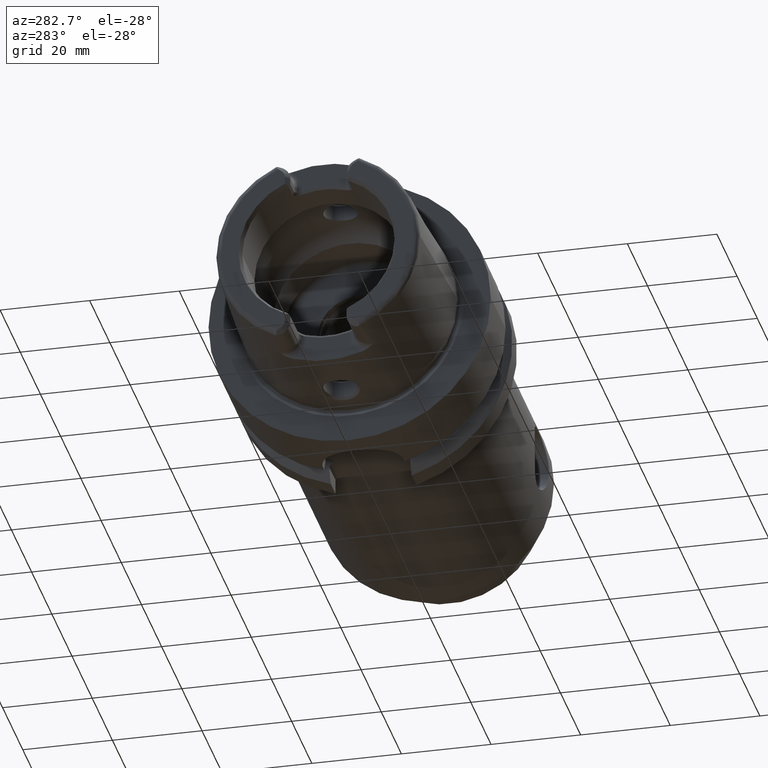
[diagram: clean part render]
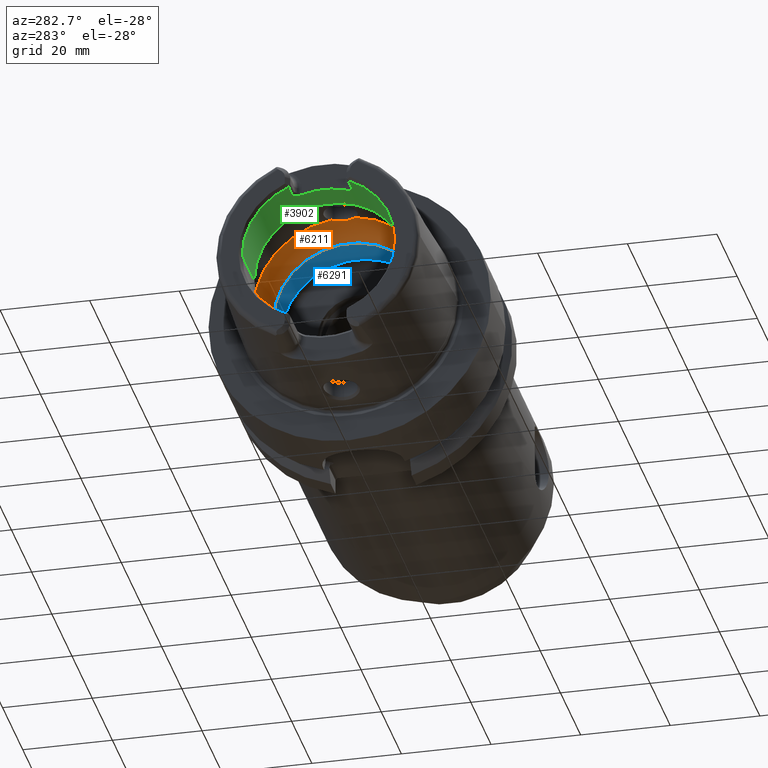
[diagram: same view with three faces highlighted in distinct colors, each labeled with its STEP entity id]
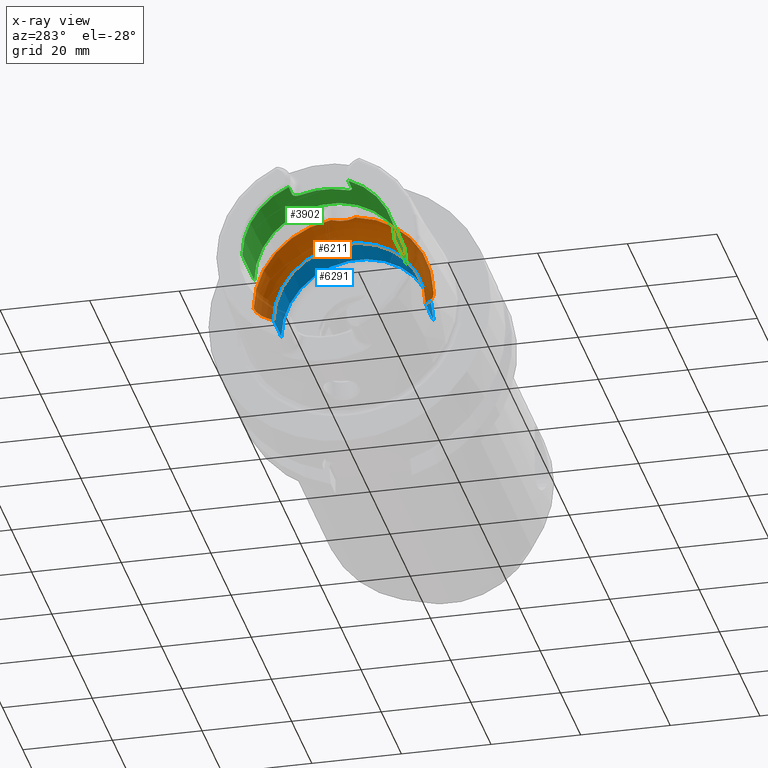
[diagram: x-ray of the same camera — body ghosted, the three highlighted faces saturated]
A machine part, auxiliary view with three faces highlighted in distinct colors.
The next image is the same camera in x-ray (body ghosted, the three faces saturated) — at least one of them is partly hidden behind the body in this view.
Their STEP definitions:

[orange] entity #6211 — the highlighted toroidal blend (fillet) surface has major radius 12 mm and minor (blend) radius 8 mm.
#2427=CARTESIAN_POINT('',(-5.25E0,0.E0,1.992470689575E1));
#2428=CARTESIAN_POINT('',(-5.25E0,1.634249880127E-1,1.992470689575E1));
#2429=CARTESIAN_POINT('',(-5.271317000323E0,4.905125142286E-1,
1.992366860007E1));
#2430=CARTESIAN_POINT('',(-5.367938073203E0,9.753406287590E-1,
1.991846757388E1));
#2431=CARTESIAN_POINT('',(-5.525913254439E0,1.440181253243E0,1.990841194030E1));
#2432=CARTESIAN_POINT('',(-5.745012466850E0,1.883704211740E0,1.989126222791E1));
#2433=CARTESIAN_POINT('',(-6.017092970824E0,2.289932260455E0,1.986481338490E1));
#2434=CARTESIAN_POINT('',(-6.231037578916E0,2.534045566496E0,1.983915065875E1));
#2435=CARTESIAN_POINT('',(-6.344997998398E0,2.648294615690E0,1.982388800484E1));
#2437=CARTESIAN_POINT('',(-6.344997998398E0,-2.648294615690E0,
1.982388800484E1));
#2438=CARTESIAN_POINT('',(-6.231045843136E0,-2.534053851646E0,
1.983914955193E1));
#2439=CARTESIAN_POINT('',(-6.017093742818E0,-2.289943440357E0,
1.986481395775E1));
#2440=CARTESIAN_POINT('',(-5.744901596897E0,-1.883527876206E0,
1.989127237006E1));
#2441=CARTESIAN_POINT('',(-5.525828432433E0,-1.439963272778E0,
1.990841763195E1));
#2442=CARTESIAN_POINT('',(-5.367908372542E0,-9.752317929729E-1,
1.991846926373E1));
#2443=CARTESIAN_POINT('',(-5.271289109403E0,-4.903031116233E-1,
1.992367002777E1));
#2444=CARTESIAN_POINT('',(-5.25E0,-1.633414179458E-1,1.992470689575E1));
#2445=CARTESIAN_POINT('',(-5.25E0,0.E0,1.992470689575E1));
#2447=CARTESIAN_POINT('',(-1.E-1,0.E0,0.E0));
#2448=DIRECTION('',(1.E0,0.E0,0.E0));
#2449=DIRECTION('',(0.E0,1.E0,0.E0));
#2450=AXIS2_PLACEMENT_3D('',#2447,#2448,#2449);
#2472=CARTESIAN_POINT('',(-6.344997998398E0,0.E0,0.E0));
#2473=DIRECTION('',(1.E0,0.E0,0.E0));
#2474=DIRECTION('',(0.E0,1.E0,0.E0));
#2475=AXIS2_PLACEMENT_3D('',#2472,#2473,#2474);
#2477=CARTESIAN_POINT('',(-6.344997998398E0,0.E0,0.E0));
#2478=DIRECTION('',(1.E0,0.E0,0.E0));
#2479=DIRECTION('',(0.E0,-1.324147307845E-1,9.911944002421E-1));
#2480=AXIS2_PLACEMENT_3D('',#2477,#2478,#2479);
#2570=CARTESIAN_POINT('',(-6.344997998398E0,1.2E1,0.E0));
#2571=DIRECTION('',(0.E0,0.E0,1.E0));
#2572=DIRECTION('',(7.806247497998E-1,6.25E-1,0.E0));
#2573=AXIS2_PLACEMENT_3D('',#2570,#2571,#2572);
#2580=CARTESIAN_POINT('',(-6.344997998398E0,-1.2E1,0.E0));
#2581=DIRECTION('',(0.E0,0.E0,-1.E0));
#2582=DIRECTION('',(7.806247497998E-1,-6.25E-1,0.E0));
#2583=AXIS2_PLACEMENT_3D('',#2580,#2581,#2582);
#2849=CARTESIAN_POINT('',(-1.E-1,1.7E1,0.E0));
#2850=VERTEX_POINT('',#2849);
#2851=CARTESIAN_POINT('',(-6.344997998398E0,2.E1,0.E0));
#2852=VERTEX_POINT('',#2851);
#2861=CARTESIAN_POINT('',(-1.E-1,-1.7E1,0.E0));
#2862=VERTEX_POINT('',#2861);
#2863=CARTESIAN_POINT('',(-6.344997998398E0,-2.E1,0.E0));
#2864=VERTEX_POINT('',#2863);
#3032=VERTEX_POINT('',#2427);
#3033=VERTEX_POINT('',#2435);
#3034=VERTEX_POINT('',#2437);
#6192=CARTESIAN_POINT('',(-6.344997998398E0,0.E0,0.E0));
#6193=DIRECTION('',(1.E0,0.E0,0.E0));
#6194=DIRECTION('',(0.E0,-1.E0,0.E0));
#6195=AXIS2_PLACEMENT_3D('',#6192,#6193,#6194);
#6196=TOROIDAL_SURFACE('',#6195,1.2E1,8.E0);
#6197=ORIENTED_EDGE('',*,*,#6169,.F.);
#6198=ORIENTED_EDGE('',*,*,#5935,.F.);
#6200=ORIENTED_EDGE('',*,*,#6199,.T.);
#6202=ORIENTED_EDGE('',*,*,#6201,.F.);
#6204=ORIENTED_EDGE('',*,*,#6203,.F.);
#6206=ORIENTED_EDGE('',*,*,#6205,.T.);
#6208=ORIENTED_EDGE('',*,*,#6207,.T.);
#6209=EDGE_LOOP('',(#6197,#6198,#6200,#6202,#6204,#6206,#6208));
#6210=FACE_OUTER_BOUND('',#6209,.F.);
#6211=ADVANCED_FACE('',(#6210),#6196,.F.);
#2436=B_SPLINE_CURVE_WITH_KNOTS('',3,(#2427,#2428,#2429,#2430,#2431,#2432,#2433,
#2434,#2435),.UNSPECIFIED.,.F.,.F.,(4,1,1,1,1,1,4),(0.E0,1.666666666667E-1,
3.333333333333E-1,5.E-1,6.666666666667E-1,8.333333333333E-1,1.E0),
.UNSPECIFIED.);
#2446=B_SPLINE_CURVE_WITH_KNOTS('',3,(#2437,#2438,#2439,#2440,#2441,#2442,#2443,
#2444,#2445),.UNSPECIFIED.,.F.,.F.,(4,1,1,1,1,1,4),(0.E0,1.666666666667E-1,
3.333333333333E-1,5.E-1,6.666666666667E-1,8.333333333333E-1,1.E0),
.UNSPECIFIED.);
#2451=CIRCLE('',#2450,1.7E1);
#2476=CIRCLE('',#2475,2.E1);
#2481=CIRCLE('',#2480,2.E1);
#2574=CIRCLE('',#2573,8.E0);
#2584=CIRCLE('',#2583,8.E0);
#5935=EDGE_CURVE('',#3034,#3032,#2446,.T.);
#6169=EDGE_CURVE('',#3032,#3033,#2436,.T.);
#6199=EDGE_CURVE('',#3034,#2864,#2481,.T.);
#6201=EDGE_CURVE('',#2862,#2864,#2584,.T.);
#6203=EDGE_CURVE('',#2850,#2862,#2451,.T.);
#6205=EDGE_CURVE('',#2850,#2852,#2574,.T.);
#6207=EDGE_CURVE('',#2852,#3033,#2476,.T.);

[blue] entity #6291 — the highlighted cylindrical surface (partial cylindrical patch) has radius 17 mm, axis along (1, 0, 0).
#2447=CARTESIAN_POINT('',(-1.E-1,0.E0,0.E0));
#2448=DIRECTION('',(1.E0,0.E0,0.E0));
#2449=DIRECTION('',(0.E0,1.E0,0.E0));
#2450=AXIS2_PLACEMENT_3D('',#2447,#2448,#2449);
#2595=DIRECTION('',(-1.E0,0.E0,0.E0));
#2596=VECTOR('',#2595,7.770843802411E0);
#2597=CARTESIAN_POINT('',(7.670843802411E0,1.7E1,0.E0));
#2598=LINE('',#2597,#2596);
#2604=DIRECTION('',(-1.E0,0.E0,0.E0));
#2605=VECTOR('',#2604,7.770843802411E0);
#2606=CARTESIAN_POINT('',(7.670843802411E0,-1.7E1,0.E0));
#2607=LINE('',#2606,#2605);
#2608=CARTESIAN_POINT('',(7.670843802411E0,0.E0,0.E0));
#2609=DIRECTION('',(1.E0,0.E0,0.E0));
#2610=DIRECTION('',(0.E0,1.E0,0.E0));
#2611=AXIS2_PLACEMENT_3D('',#2608,#2609,#2610);
#2842=CARTESIAN_POINT('',(7.670843802411E0,1.7E1,0.E0));
#2844=VERTEX_POINT('',#2842);
#2846=CARTESIAN_POINT('',(7.670843802411E0,-1.7E1,0.E0));
#2848=VERTEX_POINT('',#2846);
#2849=CARTESIAN_POINT('',(-1.E-1,1.7E1,0.E0));
#2850=VERTEX_POINT('',#2849);
#2861=CARTESIAN_POINT('',(-1.E-1,-1.7E1,0.E0));
#2862=VERTEX_POINT('',#2861);
#6279=CARTESIAN_POINT('',(-3.41E1,0.E0,0.E0));
#6280=DIRECTION('',(1.E0,0.E0,0.E0));
#6281=DIRECTION('',(0.E0,-1.E0,0.E0));
#6282=AXIS2_PLACEMENT_3D('',#6279,#6280,#6281);
#6283=CYLINDRICAL_SURFACE('',#6282,1.7E1);
#6284=ORIENTED_EDGE('',*,*,#6269,.T.);
#6285=ORIENTED_EDGE('',*,*,#6203,.T.);
#6286=ORIENTED_EDGE('',*,*,#6273,.F.);
#6288=ORIENTED_EDGE('',*,*,#6287,.F.);
#6289=EDGE_LOOP('',(#6284,#6285,#6286,#6288));
#6290=FACE_OUTER_BOUND('',#6289,.F.);
#6291=ADVANCED_FACE('',(#6290),#6283,.F.);
#2451=CIRCLE('',#2450,1.7E1);
#2612=CIRCLE('',#2611,1.7E1);
#6203=EDGE_CURVE('',#2850,#2862,#2451,.T.);
#6269=EDGE_CURVE('',#2844,#2850,#2598,.T.);
#6273=EDGE_CURVE('',#2848,#2862,#2607,.T.);
#6287=EDGE_CURVE('',#2844,#2848,#2612,.T.);

[green] entity #3902 — the highlighted cylindrical surface (partial cylindrical patch) has radius 17 mm, axis along (1, 0, 0).
#362=CARTESIAN_POINT('',(-3.1E1,0.E0,0.E0));
#363=DIRECTION('',(1.E0,0.E0,0.E0));
#364=DIRECTION('',(0.E0,1.E0,0.E0));
#365=AXIS2_PLACEMENT_3D('',#362,#363,#364);
#394=CARTESIAN_POINT('',(-3.1E1,0.E0,0.E0));
#395=DIRECTION('',(1.E0,0.E0,0.E0));
#396=DIRECTION('',(0.E0,-3.910839598454E-1,9.203550056102E-1));
#397=AXIS2_PLACEMENT_3D('',#394,#395,#396);
#559=DIRECTION('',(1.E0,0.E0,0.E0));
#560=VECTOR('',#559,3.5E0);
#561=CARTESIAN_POINT('',(-3.1E1,6.648427317371E0,1.564603509537E1));
#562=LINE('',#561,#560);
#563=CARTESIAN_POINT('',(-2.571132486541E1,4.77E0,1.631708000838E1));
#564=CARTESIAN_POINT('',(-2.570911463045E1,4.851899929325E0,1.629313806150E1));
#565=CARTESIAN_POINT('',(-2.571539985496E1,5.014300274441E0,1.624433189365E1));
#566=CARTESIAN_POINT('',(-2.575723226820E1,5.255574737127E0,1.616786516493E1));
#567=CARTESIAN_POINT('',(-2.583019759937E1,5.488813832187E0,1.609012650164E1));
#568=CARTESIAN_POINT('',(-2.593222755914E1,5.709311810621E0,1.601314455534E1));
#569=CARTESIAN_POINT('',(-2.606208908479E1,5.913640570765E0,1.593873381343E1));
#570=CARTESIAN_POINT('',(-2.621579663552E1,6.097621457296E0,1.586916363348E1));
#571=CARTESIAN_POINT('',(-2.639004084082E1,6.257927374534E0,1.580654307494E1));
#572=CARTESIAN_POINT('',(-2.658287946713E1,6.394281114327E0,1.575179653388E1));
#573=CARTESIAN_POINT('',(-2.679414325254E1,6.504885265694E0,1.570637036291E1));
#574=CARTESIAN_POINT('',(-2.702072491693E1,6.586740689310E0,1.567215753589E1));
#575=CARTESIAN_POINT('',(-2.725841410654E1,6.637201205541E0,1.565081274977E1));
#576=CARTESIAN_POINT('',(-2.741884128981E1,6.648427317371E0,1.564603509537E1));
#577=CARTESIAN_POINT('',(-2.75E1,6.648427317371E0,1.564603509537E1));
#579=CARTESIAN_POINT('',(-2.571132486541E1,-4.77E0,1.631708000838E1));
#580=CARTESIAN_POINT('',(-2.571132486541E1,-4.151241293882E0,1.649796280277E1));
#581=CARTESIAN_POINT('',(-2.571132889067E1,-2.893125957956E0,1.678926713017E1));
#582=CARTESIAN_POINT('',(-2.571132738120E1,-9.685489423330E-1,
1.700915920873E1));
#583=CARTESIAN_POINT('',(-2.571132738120E1,9.685489423332E-1,1.700915920873E1));
#584=CARTESIAN_POINT('',(-2.571132889067E1,2.893125957955E0,1.678926713017E1));
#585=CARTESIAN_POINT('',(-2.571132486541E1,4.151241293884E0,1.649796280277E1));
#586=CARTESIAN_POINT('',(-2.571132486541E1,4.77E0,1.631708000838E1));
#588=CARTESIAN_POINT('',(-2.75E1,-6.648427317371E0,1.564603509537E1));
#589=CARTESIAN_POINT('',(-2.741886739757E1,-6.648427317371E0,1.564603509537E1));
#590=CARTESIAN_POINT('',(-2.725846026145E1,-6.637216591931E0,1.565080624648E1));
#591=CARTESIAN_POINT('',(-2.702047669465E1,-6.586680175792E0,1.567218311946E1));
#592=CARTESIAN_POINT('',(-2.679396033382E1,-6.504789416100E0,1.570640995358E1));
#593=CARTESIAN_POINT('',(-2.658322850975E1,-6.394447887183E0,1.575172726773E1));
#594=CARTESIAN_POINT('',(-2.639118887217E1,-6.258799446744E0,1.580619508840E1));
#595=CARTESIAN_POINT('',(-2.621738949273E1,-6.099242016698E0,1.586853752436E1));
#596=CARTESIAN_POINT('',(-2.606384631874E1,-5.916012648986E0,1.593785105703E1));
#597=CARTESIAN_POINT('',(-2.593366664869E1,-5.711955003317E0,1.601220141386E1));
#598=CARTESIAN_POINT('',(-2.583107108488E1,-5.491206341112E0,1.608931480424E1));
#599=CARTESIAN_POINT('',(-2.575746962839E1,-5.256749499660E0,1.616748882623E1));
#600=CARTESIAN_POINT('',(-2.571543732099E1,-5.014873021211E0,1.624415783103E1));
#601=CARTESIAN_POINT('',(-2.570911008721E1,-4.852068278437E0,1.629308884771E1));
#602=CARTESIAN_POINT('',(-2.571132486541E1,-4.77E0,1.631708000838E1));
#604=DIRECTION('',(1.E0,0.E0,0.E0));
#605=VECTOR('',#604,3.5E0);
#606=CARTESIAN_POINT('',(-3.1E1,-6.648427317371E0,1.564603509537E1));
#607=LINE('',#606,#605);
#608=CARTESIAN_POINT('',(-1.899602540378E1,0.E0,0.E0));
#609=DIRECTION('',(1.E0,0.E0,0.E0));
#610=DIRECTION('',(0.E0,1.E0,0.E0));
#611=AXIS2_PLACEMENT_3D('',#608,#609,#610);
#666=DIRECTION('',(-1.E0,0.E0,0.E0));
#667=VECTOR('',#666,1.200397459622E1);
#668=CARTESIAN_POINT('',(-1.899602540378E1,1.7E1,0.E0));
#669=LINE('',#668,#667);
#675=DIRECTION('',(-1.E0,0.E0,0.E0));
#676=VECTOR('',#675,1.200397459622E1);
#677=CARTESIAN_POINT('',(-1.899602540378E1,-1.7E1,0.E0));
#678=LINE('',#677,#676);
#2857=CARTESIAN_POINT('',(-1.899602540378E1,1.7E1,0.E0));
#2858=VERTEX_POINT('',#2857);
#2859=CARTESIAN_POINT('',(-3.1E1,1.7E1,0.E0));
#2860=VERTEX_POINT('',#2859);
#2869=CARTESIAN_POINT('',(-1.899602540378E1,-1.7E1,0.E0));
#2870=VERTEX_POINT('',#2869);
#2871=CARTESIAN_POINT('',(-3.1E1,-1.7E1,0.E0));
#2872=VERTEX_POINT('',#2871);
#2938=CARTESIAN_POINT('',(-2.75E1,6.648427317371E0,1.564603509537E1));
#2939=VERTEX_POINT('',#2938);
#2940=CARTESIAN_POINT('',(-2.571132486541E1,4.77E0,1.631708000838E1));
#2941=VERTEX_POINT('',#2940);
#2942=CARTESIAN_POINT('',(-2.75E1,-6.648427317371E0,1.564603509537E1));
#2943=VERTEX_POINT('',#2942);
#2944=CARTESIAN_POINT('',(-2.571132486541E1,-4.77E0,1.631708000838E1));
#2945=VERTEX_POINT('',#2944);
#2950=CARTESIAN_POINT('',(-3.1E1,6.648427317371E0,1.564603509537E1));
#2951=VERTEX_POINT('',#2950);
#2952=CARTESIAN_POINT('',(-3.1E1,-6.648427317371E0,1.564603509537E1));
#2953=VERTEX_POINT('',#2952);
#3881=CARTESIAN_POINT('',(-3.41E1,0.E0,0.E0));
#3882=DIRECTION('',(1.E0,0.E0,0.E0));
#3883=DIRECTION('',(0.E0,-1.E0,0.E0));
#3884=AXIS2_PLACEMENT_3D('',#3881,#3882,#3883);
#3885=CYLINDRICAL_SURFACE('',#3884,1.7E1);
#3886=ORIENTED_EDGE('',*,*,#3618,.T.);
#3888=ORIENTED_EDGE('',*,*,#3887,.F.);
#3889=ORIENTED_EDGE('',*,*,#3766,.F.);
#3890=ORIENTED_EDGE('',*,*,#3821,.F.);
#3891=ORIENTED_EDGE('',*,*,#3836,.F.);
#3892=ORIENTED_EDGE('',*,*,#3583,.T.);
#3894=ORIENTED_EDGE('',*,*,#3893,.F.);
#3896=ORIENTED_EDGE('',*,*,#3895,.F.);
#3898=ORIENTED_EDGE('',*,*,#3897,.T.);
#3899=ORIENTED_EDGE('',*,*,#3563,.T.);
#3900=EDGE_LOOP('',(#3886,#3888,#3889,#3890,#3891,#3892,#3894,#3896,#3898,
#3899));
#3901=FACE_OUTER_BOUND('',#3900,.F.);
#3902=ADVANCED_FACE('',(#3901),#3885,.F.);
#366=CIRCLE('',#365,1.7E1);
#398=CIRCLE('',#397,1.7E1);
#578=B_SPLINE_CURVE_WITH_KNOTS('',3,(#563,#564,#565,#566,#567,#568,#569,#570,
#571,#572,#573,#574,#575,#576,#577),.UNSPECIFIED.,.F.,.F.,(4,1,1,1,1,1,1,1,1,1,
1,1,4),(0.E0,8.333333333333E-2,1.666666666667E-1,2.5E-1,3.333333333333E-1,
4.166666666667E-1,5.E-1,5.833333333333E-1,6.666666666667E-1,7.5E-1,
8.333333333333E-1,9.166666666667E-1,1.E0),.UNSPECIFIED.);
#587=B_SPLINE_CURVE_WITH_KNOTS('',3,(#579,#580,#581,#582,#583,#584,#585,#586),
.UNSPECIFIED.,.F.,.F.,(4,1,1,1,1,4),(0.E0,2.E-1,4.E-1,6.E-1,8.E-1,1.E0),
.UNSPECIFIED.);
#603=B_SPLINE_CURVE_WITH_KNOTS('',3,(#588,#589,#590,#591,#592,#593,#594,#595,
#596,#597,#598,#599,#600,#601,#602),.UNSPECIFIED.,.F.,.F.,(4,1,1,1,1,1,1,1,1,1,
1,1,4),(0.E0,8.333333333333E-2,1.666666666667E-1,2.5E-1,3.333333333333E-1,
4.166666666667E-1,5.E-1,5.833333333333E-1,6.666666666667E-1,7.5E-1,
8.333333333333E-1,9.166666666667E-1,1.E0),.UNSPECIFIED.);
#612=CIRCLE('',#611,1.7E1);
#3563=EDGE_CURVE('',#2860,#2951,#366,.T.);
#3583=EDGE_CURVE('',#2953,#2872,#398,.T.);
#3618=EDGE_CURVE('',#2951,#2939,#562,.T.);
#3766=EDGE_CURVE('',#2945,#2941,#587,.T.);
#3821=EDGE_CURVE('',#2943,#2945,#603,.T.);
#3836=EDGE_CURVE('',#2953,#2943,#607,.T.);
#3887=EDGE_CURVE('',#2941,#2939,#578,.T.);
#3893=EDGE_CURVE('',#2870,#2872,#678,.T.);
#3895=EDGE_CURVE('',#2858,#2870,#612,.T.);
#3897=EDGE_CURVE('',#2858,#2860,#669,.T.);